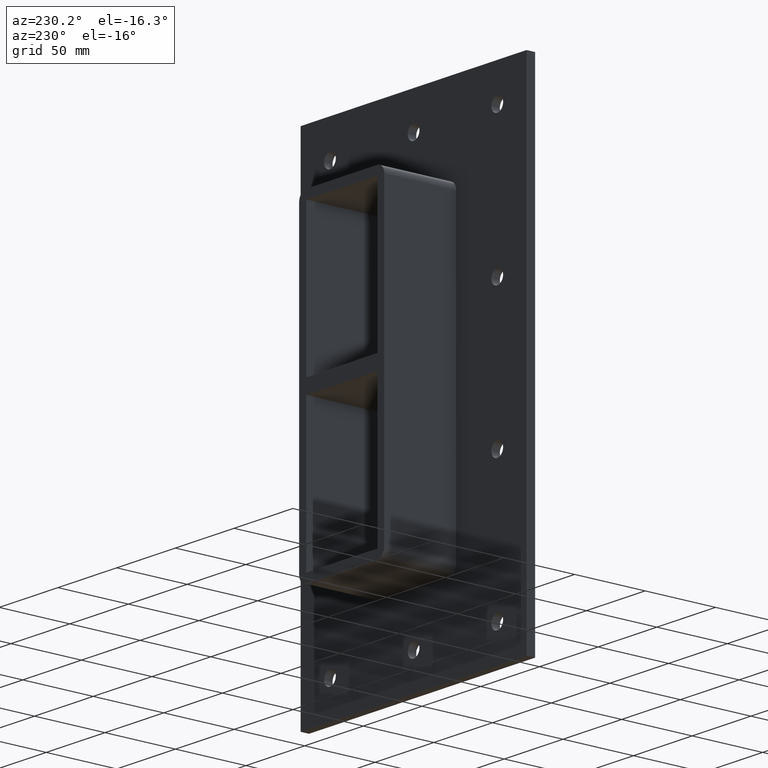
[diagram: clean part render]
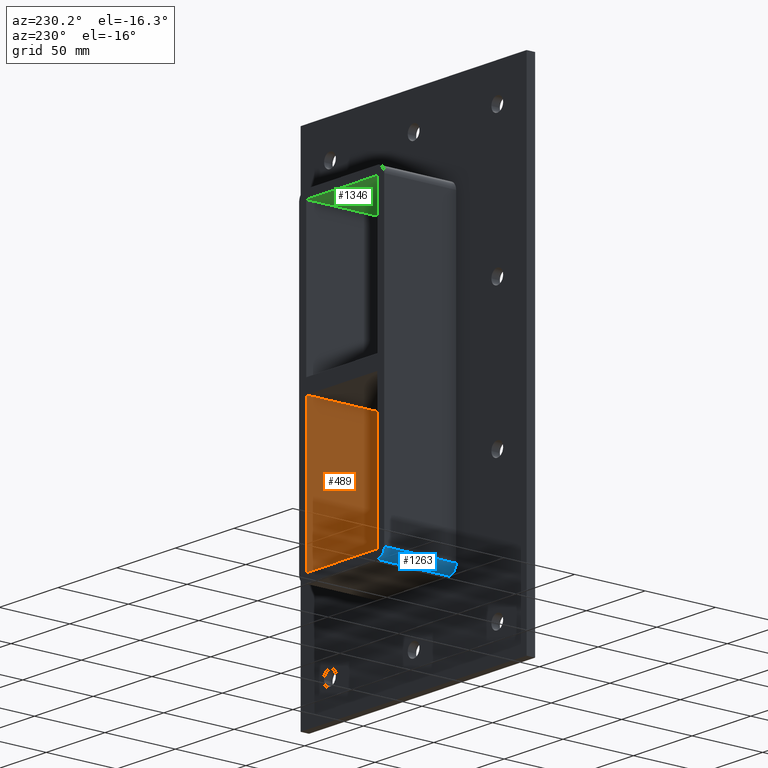
[diagram: same view with three faces highlighted in distinct colors, each labeled with its STEP entity id]
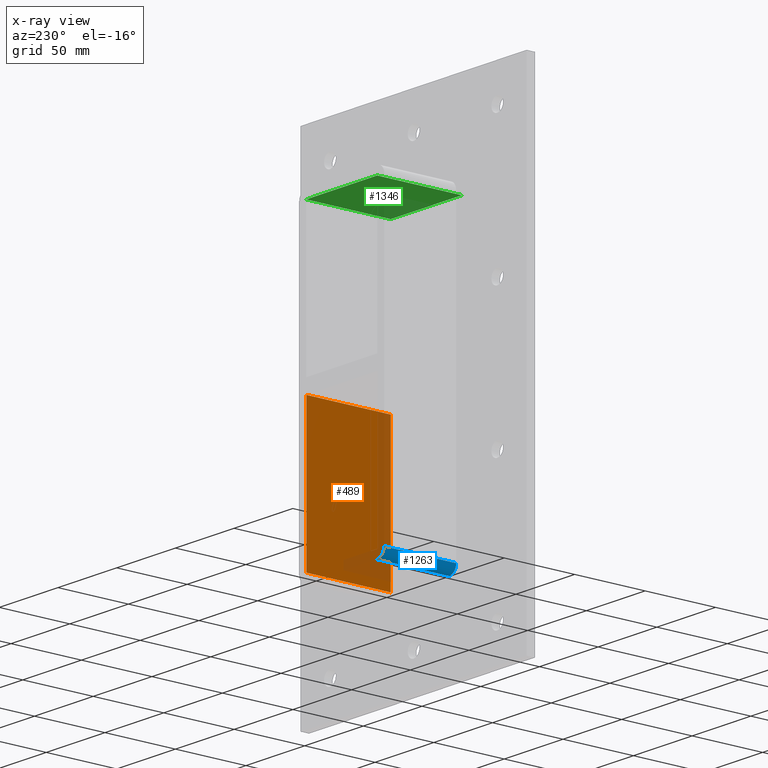
[diagram: x-ray of the same camera — body ghosted, the three highlighted faces saturated]
A machine part, auxiliary view with three faces highlighted in distinct colors.
The next image is the same camera in x-ray (body ghosted, the three faces saturated) — at least one of them is partly hidden behind the body in this view.
Their STEP definitions:

[orange] entity #489 — the highlighted planar face has unit normal (1, 0, 0).
#353=CARTESIAN_POINT('',(30.249999999999897,-3.0,-5.000000000011085));
#354=VERTEX_POINT('',#353);
#371=CARTESIAN_POINT('',(30.249999999999893,57.0,-5.000000000011085));
#372=VERTEX_POINT('',#371);
#379=CARTESIAN_POINT('',(30.250000000000004,-3.0,-5.000000000011085));
#380=DIRECTION('',(0.0,1.0,0.0));
#381=VECTOR('',#380,60.000000000000007);
#382=LINE('',#379,#381);
#383=EDGE_CURVE('',#354,#372,#382,.T.);
#459=CARTESIAN_POINT('',(30.250000000000004,0.0,106.00000000000001));
#460=DIRECTION('',(1.0,0.0,0.0));
#461=DIRECTION('',(0.0,0.0,-1.0));
#462=AXIS2_PLACEMENT_3D('',#459,#460,#461);
#463=PLANE('',#462);
#464=ORIENTED_EDGE('',*,*,#383,.T.);
#465=CARTESIAN_POINT('',(30.250000000000004,57.0,-106.00000000000001));
#466=VERTEX_POINT('',#465);
#467=CARTESIAN_POINT('',(30.250000000000004,57.0,-106.00000000000001));
#468=DIRECTION('',(0.0,0.0,1.0));
#469=VECTOR('',#468,100.99999999998893);
#470=LINE('',#467,#469);
#471=EDGE_CURVE('',#466,#372,#470,.T.);
#472=ORIENTED_EDGE('',*,*,#471,.F.);
#473=CARTESIAN_POINT('',(30.250000000000004,-3.0,-106.00000000000001));
#474=VERTEX_POINT('',#473);
#475=CARTESIAN_POINT('',(30.250000000000004,56.999999999999993,-106.00000000000001));
#476=DIRECTION('',(0.0,-1.0,0.0));
#477=VECTOR('',#476,59.999999999999993);
#478=LINE('',#475,#477);
#479=EDGE_CURVE('',#466,#474,#478,.T.);
#480=ORIENTED_EDGE('',*,*,#479,.T.);
#481=CARTESIAN_POINT('',(30.250000000000004,-3.0,-5.000000000011085));
#482=DIRECTION('',(0.0,0.0,-1.0));
#483=VECTOR('',#482,100.99999999998893);
#484=LINE('',#481,#483);
#485=EDGE_CURVE('',#354,#474,#484,.T.);
#486=ORIENTED_EDGE('',*,*,#485,.F.);
#487=EDGE_LOOP('',(#464,#472,#480,#486));
#488=FACE_OUTER_BOUND('',#487,.T.);
#489=ADVANCED_FACE('',(#488),#463,.F.);

[blue] entity #1263 — the highlighted cylindrical surface (edge-blend (fillet) strip) has radius 6 mm, axis along (0, 1, 0).
#590=CARTESIAN_POINT('',(-30.250000000000004,6.000000000000001,-112.0));
#591=VERTEX_POINT('',#590);
#592=CARTESIAN_POINT('',(-36.250000000000007,6.000000000000001,-105.99999999999997));
#593=VERTEX_POINT('',#592);
#594=CARTESIAN_POINT('',(-30.250000000000004,6.000000000000001,-105.99999999999997));
#595=DIRECTION('',(0.0,1.0,0.0));
#596=DIRECTION('',(-0.707106781186546,0.0,-0.707106781186549));
#597=AXIS2_PLACEMENT_3D('',#594,#595,#596);
#598=CIRCLE('',#597,6.000000000000001);
#599=EDGE_CURVE('',#591,#593,#598,.T.);
#1141=CARTESIAN_POINT('',(-30.25,57.0,-112.0));
#1142=VERTEX_POINT('',#1141);
#1143=CARTESIAN_POINT('',(-30.250000000000004,57.0,-112.0));
#1144=DIRECTION('',(0.0,-1.0,0.0));
#1145=VECTOR('',#1144,51.0);
#1146=LINE('',#1143,#1145);
#1147=EDGE_CURVE('',#1142,#591,#1146,.T.);
#1239=CARTESIAN_POINT('',(-30.250000000000004,0.0,-105.99999999999997));
#1240=DIRECTION('',(0.0,1.0,0.0));
#1241=DIRECTION('',(-0.707106781186546,0.0,-0.707106781186549));
#1242=AXIS2_PLACEMENT_3D('',#1239,#1240,#1241);
#1243=CYLINDRICAL_SURFACE('',#1242,6.000000000000001);
#1244=ORIENTED_EDGE('',*,*,#599,.T.);
#1245=CARTESIAN_POINT('',(-36.250000000000007,57.0,-105.99999999999997));
#1246=VERTEX_POINT('',#1245);
#1247=CARTESIAN_POINT('',(-36.250000000000007,6.000000000000001,-105.99999999999997));
#1248=DIRECTION('',(0.0,1.0,0.0));
#1249=VECTOR('',#1248,51.0);
#1250=LINE('',#1247,#1249);
#1251=EDGE_CURVE('',#593,#1246,#1250,.T.);
#1252=ORIENTED_EDGE('',*,*,#1251,.T.);
#1253=CARTESIAN_POINT('',(-30.250000000000004,57.0,-105.99999999999997));
#1254=DIRECTION('',(0.0,-1.0,0.0));
#1255=DIRECTION('',(-0.707106781186546,0.0,-0.707106781186549));
#1256=AXIS2_PLACEMENT_3D('',#1253,#1254,#1255);
#1257=CIRCLE('',#1256,6.000000000000001);
#1258=EDGE_CURVE('',#1246,#1142,#1257,.T.);
#1259=ORIENTED_EDGE('',*,*,#1258,.T.);
#1260=ORIENTED_EDGE('',*,*,#1147,.T.);
#1261=EDGE_LOOP('',(#1244,#1252,#1259,#1260));
#1262=FACE_OUTER_BOUND('',#1261,.T.);
#1263=ADVANCED_FACE('',(#1262),#1243,.T.);

[green] entity #1346 — the highlighted planar face has unit normal (0, 0, 1).
#434=CARTESIAN_POINT('',(-30.250000000000004,57.0,106.00000000000001));
#435=VERTEX_POINT('',#434);
#442=CARTESIAN_POINT('',(-30.250000000000004,-3.0,106.00000000000001));
#443=VERTEX_POINT('',#442);
#444=CARTESIAN_POINT('',(-30.250000000000004,-3.0,106.00000000000001));
#445=DIRECTION('',(0.0,1.0,0.0));
#446=VECTOR('',#445,60.0);
#447=LINE('',#444,#446);
#448=EDGE_CURVE('',#443,#435,#447,.T.);
#496=CARTESIAN_POINT('',(30.250000000000004,-3.0,106.00000000000001));
#497=VERTEX_POINT('',#496);
#504=CARTESIAN_POINT('',(30.250000000000004,57.0,106.00000000000001));
#505=VERTEX_POINT('',#504);
#506=CARTESIAN_POINT('',(30.250000000000004,-3.0,106.00000000000001));
#507=DIRECTION('',(0.0,1.0,0.0));
#508=VECTOR('',#507,60.0);
#509=LINE('',#506,#508);
#510=EDGE_CURVE('',#497,#505,#509,.T.);
#1217=CARTESIAN_POINT('',(-30.250000000000004,-3.0,106.00000000000001));
#1218=DIRECTION('',(1.0,0.0,0.0));
#1219=VECTOR('',#1218,60.500000000000014);
#1220=LINE('',#1217,#1219);
#1221=EDGE_CURVE('',#443,#497,#1220,.T.);
#1330=CARTESIAN_POINT('',(-30.250000000000004,0.0,106.00000000000001));
#1331=DIRECTION('',(0.0,0.0,1.0));
#1332=DIRECTION('',(1.0,0.0,0.0));
#1333=AXIS2_PLACEMENT_3D('',#1330,#1331,#1332);
#1334=PLANE('',#1333);
#1335=ORIENTED_EDGE('',*,*,#448,.T.);
#1336=CARTESIAN_POINT('',(30.250000000000007,57.0,106.00000000000001));
#1337=DIRECTION('',(-1.0,0.0,0.0));
#1338=VECTOR('',#1337,60.500000000000014);
#1339=LINE('',#1336,#1338);
#1340=EDGE_CURVE('',#505,#435,#1339,.T.);
#1341=ORIENTED_EDGE('',*,*,#1340,.F.);
#1342=ORIENTED_EDGE('',*,*,#510,.F.);
#1343=ORIENTED_EDGE('',*,*,#1221,.F.);
#1344=EDGE_LOOP('',(#1335,#1341,#1342,#1343));
#1345=FACE_OUTER_BOUND('',#1344,.T.);
#1346=ADVANCED_FACE('',(#1345),#1334,.F.);